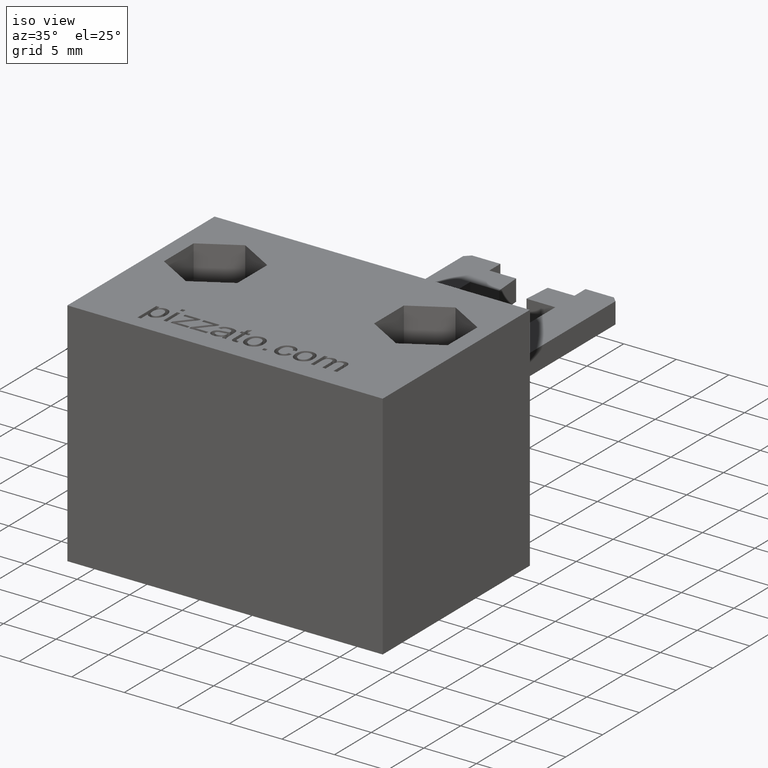
[diagram: clean part render]
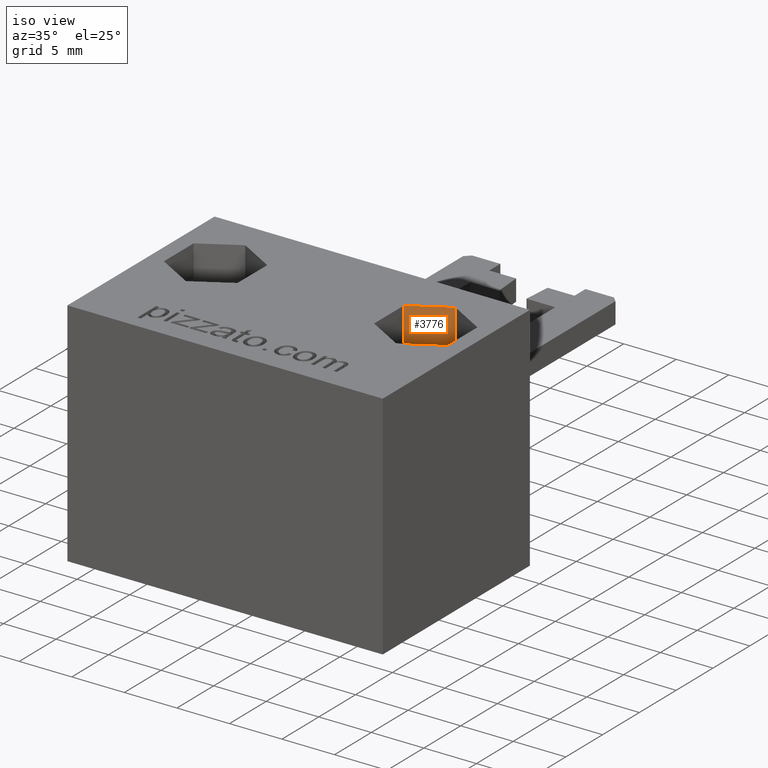
[diagram: same view with one face highlighted and labeled with its STEP entity id]
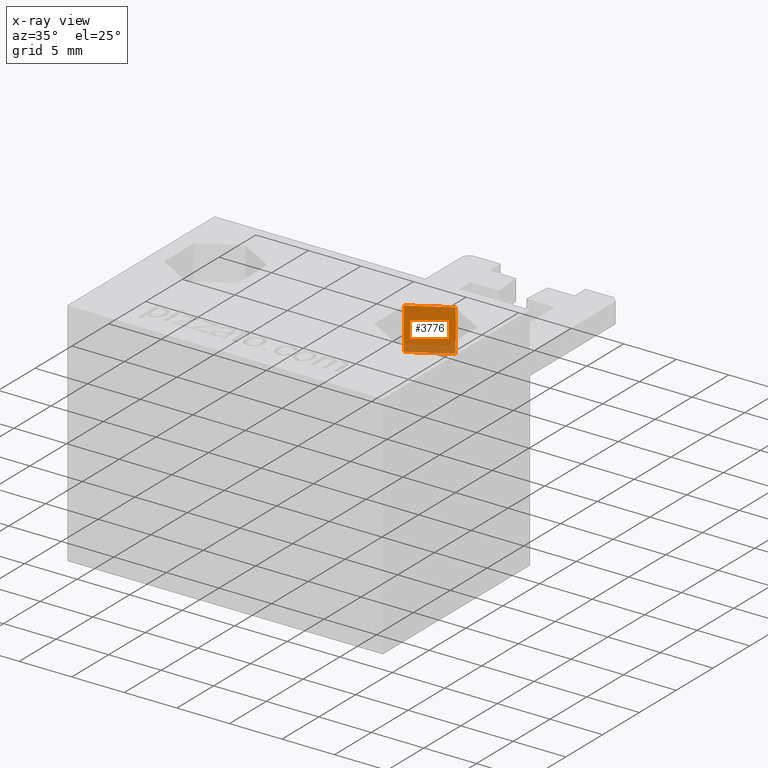
[diagram: x-ray of the same camera — body ghosted, the highlighted face saturated]
A machine part, iso view. The second image highlights one B-rep face of the part: STEP entity #3776.
The next image is the same camera in x-ray: the body ghosted, the highlighted face saturated — about 19% of this face is hidden behind the body in this view.
In plain terms, the highlighted planar face has unit normal (-0.5, 0.866, -0).
Its self-contained STEP definition (entity closure, byte-faithful):
#313=FACE_OUTER_BOUND('',#528,.T.);
#528=EDGE_LOOP('',(#2677,#2678,#2679,#2680));
#820=LINE('',#5053,#1233);
#822=LINE('',#5057,#1235);
#823=LINE('',#5059,#1236);
#824=LINE('',#5060,#1237);
#1233=VECTOR('',#4305,4.);
#1235=VECTOR('',#4309,4.04145159373749);
#1236=VECTOR('',#4310,4.);
#1237=VECTOR('',#4311,4.04145159373749);
#1620=VERTEX_POINT('',#5050);
#1621=VERTEX_POINT('',#5052);
#1622=VERTEX_POINT('',#5056);
#1623=VERTEX_POINT('',#5058);
#2028=EDGE_CURVE('',#1620,#1621,#820,.T.);
#2030=EDGE_CURVE('',#1622,#1620,#822,.T.);
#2031=EDGE_CURVE('',#1622,#1623,#823,.T.);
#2032=EDGE_CURVE('',#1623,#1621,#824,.T.);
#2677=ORIENTED_EDGE('',*,*,#2030,.F.);
#2678=ORIENTED_EDGE('',*,*,#2031,.T.);
#2679=ORIENTED_EDGE('',*,*,#2032,.T.);
#2680=ORIENTED_EDGE('',*,*,#2028,.F.);
#3634=PLANE('',#3999);
#3776=ADVANCED_FACE('',(#313),#3634,.F.);
#3999=AXIS2_PLACEMENT_3D('',#5055,#4307,#4308);
#4305=DIRECTION('',(0.,0.,-1.));
#4307=DIRECTION('center_axis',(0.866025377565665,0.500000045412245,0.));
#4308=DIRECTION('ref_axis',(0.500000045412245,-0.866025377565665,0.));
#4309=DIRECTION('',(0.500000045412245,-0.866025377565665,0.));
#4310=DIRECTION('',(0.,0.,-1.));
#4311=DIRECTION('',(0.500000045412245,-0.866025377565665,0.));
#5050=CARTESIAN_POINT('',(17.0381747819561,5.00277578212216,22.));
#5052=CARTESIAN_POINT('',(17.0381747819561,5.00277578212216,18.));
#5053=CARTESIAN_POINT('',(17.0381747819561,5.00277578212216,22.));
#5055=CARTESIAN_POINT('Origin',(15.017448801556,8.50277542450203,22.));
#5056=CARTESIAN_POINT('',(15.017448801556,8.50277542450203,22.));
#5057=CARTESIAN_POINT('',(12.9835771181416,12.0255440896465,22.));
#5058=CARTESIAN_POINT('',(15.017448801556,8.50277542450203,18.));
#5059=CARTESIAN_POINT('',(15.017448801556,8.50277542450203,22.));
#5060=CARTESIAN_POINT('',(15.017448801556,8.50277542450203,18.));